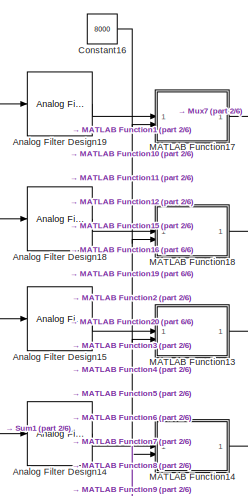
[diagram: root canvas - part 1/6, top left region]
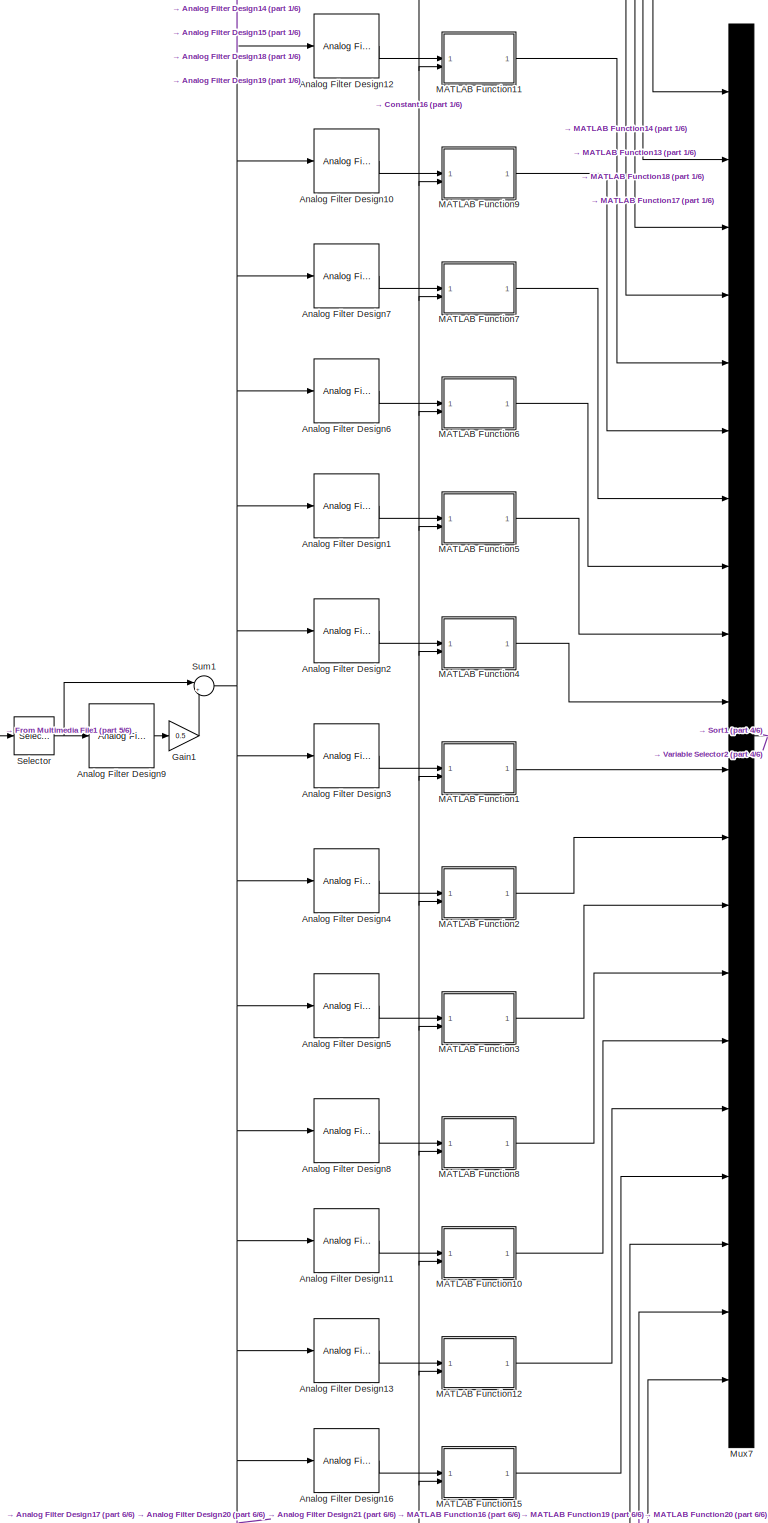
[diagram: root canvas - part 2/6, middle left region]
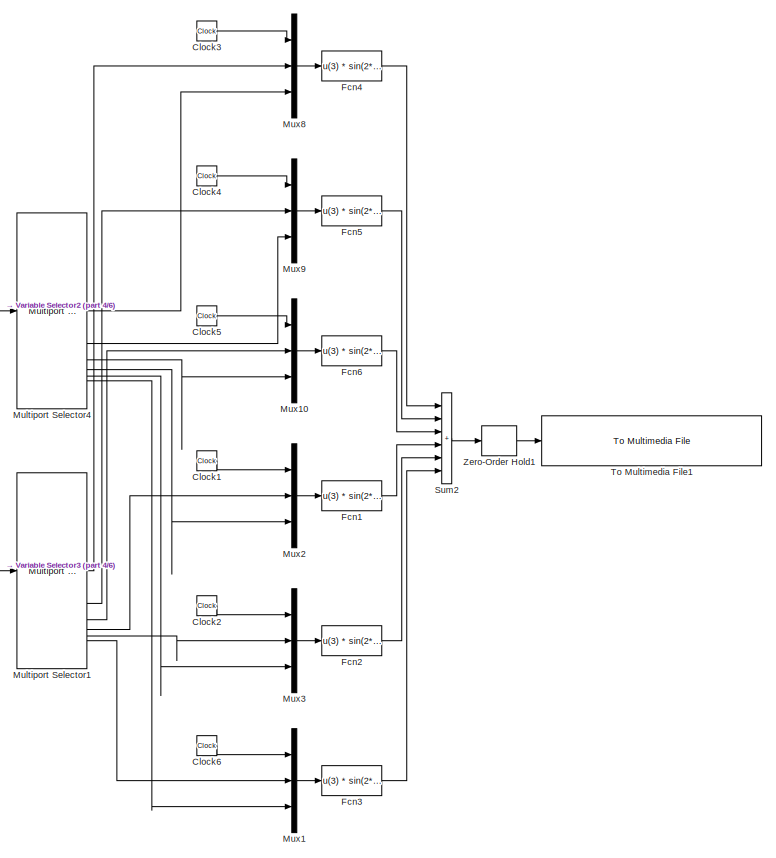
[diagram: root canvas - part 3/6, middle right region]
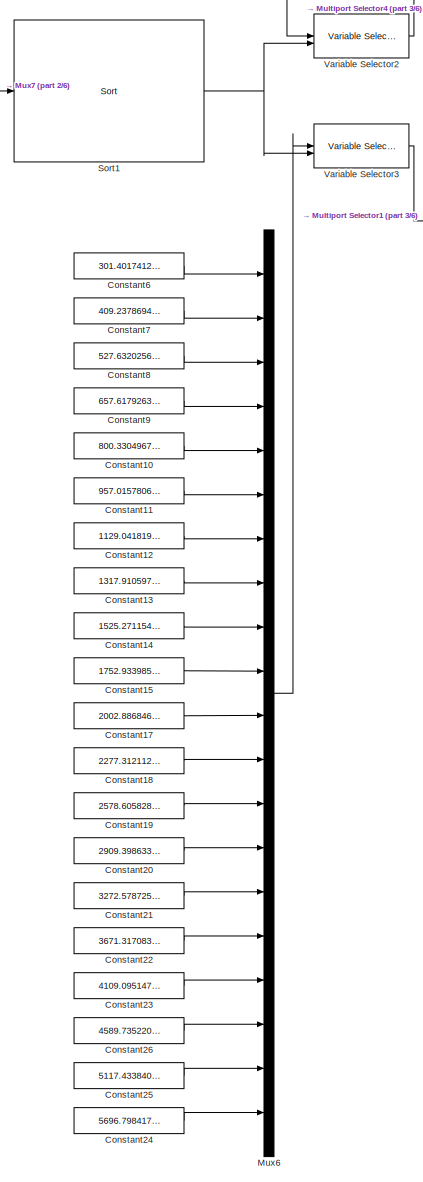
[diagram: root canvas - part 4/6, bottom center region]
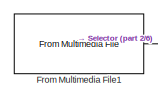
[diagram: root canvas - part 5/6, middle left region]
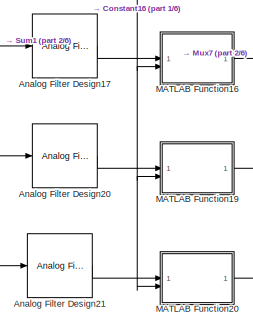
[diagram: root canvas - part 6/6, bottom left region]
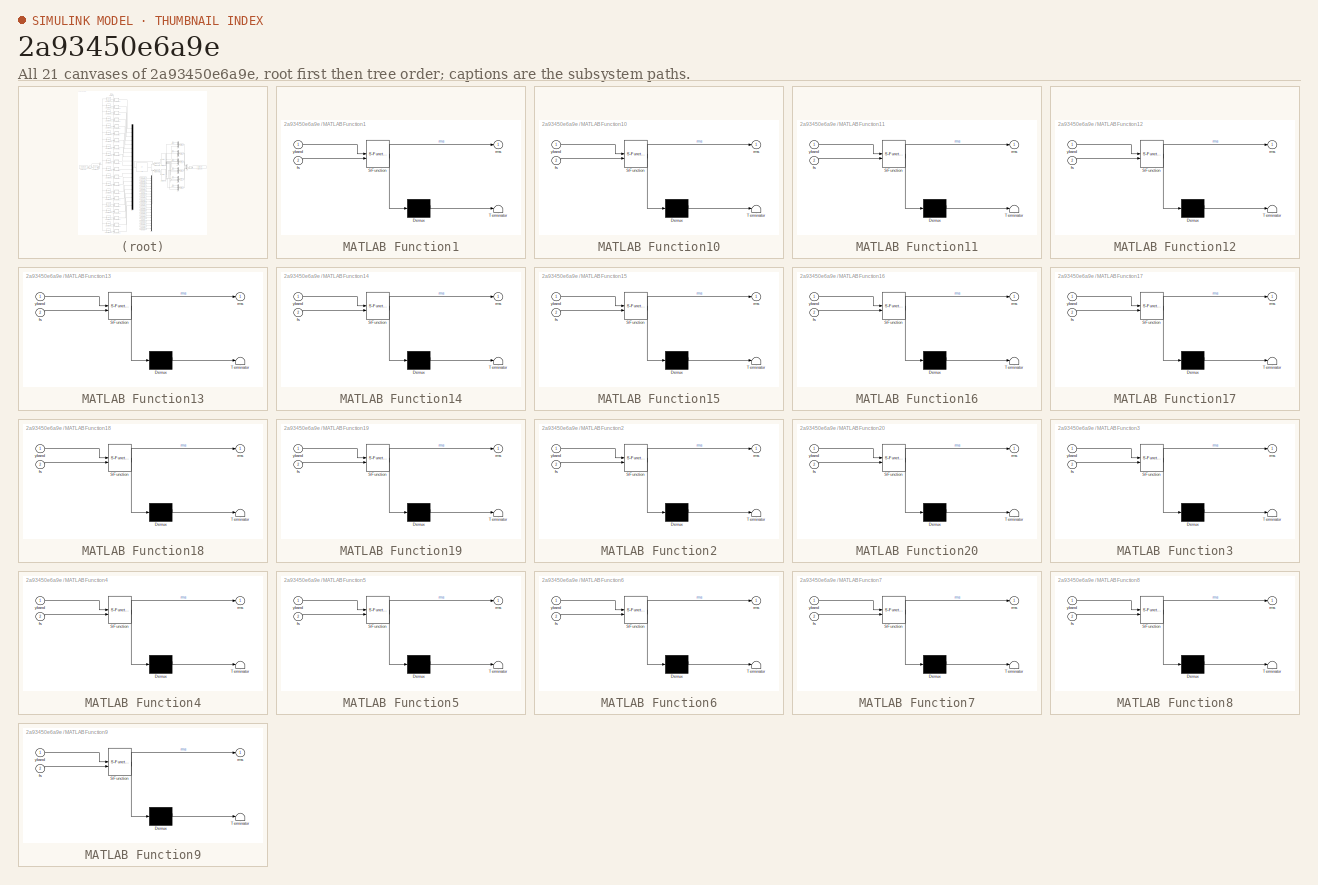
[diagram: thumbnail index - all 21 canvases of the model, root first then tree order]
MODEL slx_2a93450e6a9e
KIND model
CONFIG AbsTol = auto
CONFIG EnableMultiTasking = off
CONFIG FixedStep = auto
CONFIG MaxStep = auto
CONFIG MinStep = auto
CONFIG RelTol = 1e-3
CONFIG SampleTimeConstraint = Unconstrained
CONFIG SolverName = ode23tb
CONFIG StartTime = 0.0
CONFIG StopTime = 3.0
BLOCK [Reference] Analog Filter Design1  REF=dspfdesign/Analog
Filter Design
  SourceBlock = dspfdesign/Analog\nFilter Design
  SourceType = Analog Filter Design
BLOCK [Reference] Analog Filter Design10  REF=dspfdesign/Analog
Filter Design
  SourceBlock = dspfdesign/Analog\nFilter Design
  SourceType = Analog Filter Design
BLOCK [Reference] Analog Filter Design11  REF=dspfdesign/Analog
Filter Design
  SourceBlock = dspfdesign/Analog\nFilter Design
  SourceType = Analog Filter Design
BLOCK [Reference] Analog Filter Design12  REF=dspfdesign/Analog
Filter Design
  SourceBlock = dspfdesign/Analog\nFilter Design
  SourceType = Analog Filter Design
BLOCK [Reference] Analog Filter Design13  REF=dspfdesign/Analog
Filter Design
  SourceBlock = dspfdesign/Analog\nFilter Design
  SourceType = Analog Filter Design
BLOCK [Reference] Analog Filter Design14  REF=dspfdesign/Analog
Filter Design
  SourceBlock = dspfdesign/Analog\nFilter Design
  SourceType = Analog Filter Design
BLOCK [Reference] Analog Filter Design15  REF=dspfdesign/Analog
Filter Design
  SourceBlock = dspfdesign/Analog\nFilter Design
  SourceType = Analog Filter Design
BLOCK [Reference] Analog Filter Design16  REF=dspfdesign/Analog
Filter Design
  SourceBlock = dspfdesign/Analog\nFilter Design
  SourceType = Analog Filter Design
BLOCK [Reference] Analog Filter Design17  REF=dspfdesign/Analog
Filter Design
  SourceBlock = dspfdesign/Analog\nFilter Design
  SourceType = Analog Filter Design
BLOCK [Reference] Analog Filter Design18  REF=dspfdesign/Analog
Filter Design
  SourceBlock = dspfdesign/Analog\nFilter Design
  SourceType = Analog Filter Design
BLOCK [Reference] Analog Filter Design19  REF=dspfdesign/Analog
Filter Design
  SourceBlock = dspfdesign/Analog\nFilter Design
  SourceType = Analog Filter Design
BLOCK [Reference] Analog Filter Design2  REF=dspfdesign/Analog
Filter Design
  SourceBlock = dspfdesign/Analog\nFilter Design
  SourceType = Analog Filter Design
BLOCK [Reference] Analog Filter Design20  REF=dspfdesign/Analog
Filter Design
  SourceBlock = dspfdesign/Analog\nFilter Design
  SourceType = Analog Filter Design
BLOCK [Reference] Analog Filter Design21  REF=dspfdesign/Analog
Filter Design
  SourceBlock = dspfdesign/Analog\nFilter Design
  SourceType = Analog Filter Design
BLOCK [Reference] Analog Filter Design3  REF=dspfdesign/Analog
Filter Design
  SourceBlock = dspfdesign/Analog\nFilter Design
  SourceType = Analog Filter Design
BLOCK [Reference] Analog Filter Design4  REF=dspfdesign/Analog
Filter Design
  SourceBlock = dspfdesign/Analog\nFilter Design
  SourceType = Analog Filter Design
BLOCK [Reference] Analog Filter Design5  REF=dspfdesign/Analog
Filter Design
  SourceBlock = dspfdesign/Analog\nFilter Design
  SourceType = Analog Filter Design
BLOCK [Reference] Analog Filter Design6  REF=dspfdesign/Analog
Filter Design
  SourceBlock = dspfdesign/Analog\nFilter Design
  SourceType = Analog Filter Design
BLOCK [Reference] Analog Filter Design7  REF=dspfdesign/Analog
Filter Design
  SourceBlock = dspfdesign/Analog\nFilter Design
  SourceType = Analog Filter Design
BLOCK [Reference] Analog Filter Design8  REF=dspfdesign/Analog
Filter Design
  SourceBlock = dspfdesign/Analog\nFilter Design
  SourceType = Analog Filter Design
BLOCK [Reference] Analog Filter Design9  REF=dspfdesign/Analog
Filter Design
  SourceBlock = dspfdesign/Analog\nFilter Design
  SourceType = Analog Filter Design
BLOCK [Clock] Clock1
BLOCK [Clock] Clock2
BLOCK [Clock] Clock3
BLOCK [Clock] Clock4
BLOCK [Clock] Clock5
BLOCK [Clock] Clock6
BLOCK [Constant] Constant10
  Value = 800.330496731221
BLOCK [Constant] Constant11
  Value = 957.015780685397
BLOCK [Constant] Constant12
  Value = 1129.04181972607
BLOCK [Constant] Constant13
  Value = 1317.91059770701
BLOCK [Constant] Constant14
  Value = 1525.27115483511
BLOCK [Constant] Constant15
  Value = 1752.93398567535
BLOCK [Constant] Constant16
  Value = 8000
BLOCK [Constant] Constant17
  Value = 2002.88684683675
BLOCK [Constant] Constant18
  Value = 2277.31211235852
BLOCK [Constant] Constant19
  Value = 2578.60582832868
BLOCK [Constant] Constant20
  Value = 2909.39863310382
BLOCK [Constant] Constant21
  Value = 3272.57872578734
BLOCK [Constant] Constant22
  Value = 3671.31708350727
BLOCK [Constant] Constant23
  Value = 4109.09514766932
BLOCK [Constant] Constant24
  Value = 5696.79841735036
BLOCK [Constant] Constant25
  Value = 5117.43384020440
BLOCK [Constant] Constant26
  Value = 4589.73522091778
BLOCK [Constant] Constant6
  Value = 301.401741230304
BLOCK [Constant] Constant7
  Value = 409.237869408070
BLOCK [Constant] Constant8
  Value = 527.632025692257
BLOCK [Constant] Constant9
  Value = 657.617926327872
BLOCK [Fcn] Fcn1
  Expr = u(3) * sin(2*pi*u(1)*u(2))
BLOCK [Fcn] Fcn2
  Expr = u(3) * sin(2*pi*u(1)*u(2))
BLOCK [Fcn] Fcn3
  Expr = u(3) * sin(2*pi*u(1)*u(2))
BLOCK [Fcn] Fcn4
  Expr = u(3) * sin(2*pi*u(1)*u(2))
BLOCK [Fcn] Fcn5
  Expr = u(3) * sin(2*pi*u(1)*u(2))
BLOCK [Fcn] Fcn6
  Expr = u(3) * sin(2*pi*u(1)*u(2))
BLOCK [Reference] From Multimedia File1  REF=dspvision/From Multimedia File
  LibrarySourceBlock = dspsrcs4/From Multimedia File
  SourceBlock = dspvision/From Multimedia File
  SourceType = From Multimedia File
BLOCK [Gain] Gain1
  Gain = 0.5
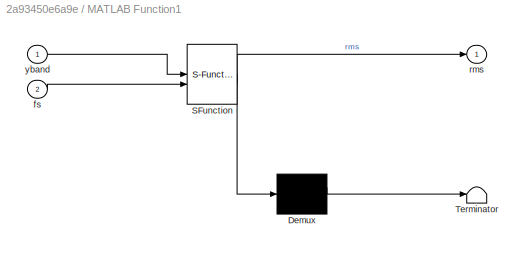
BLOCK [SubSystem] MATLAB Function1
  ErrorFcn = Stateflow.Translate.translate
  PermitHierarchicalResolution = ExplicitOnly
  SFBlockType = MATLAB Function
  TreatAsAtomicUnit = on
BLOCK [Demux] MATLAB Function1/ Demux 
  Outputs = 1
BLOCK [S-Function] MATLAB Function1/ SFunction 
  EnableBusSupport = on
  FunctionName = sf_sfun
  PortCounts = [2 2]
  SFcnIsStateOwnerBlock = off
  SFunctionDeploymentMode = off
  Tag = Stateflow S-Function 1
BLOCK [Terminator] MATLAB Function1/ Terminator 
BLOCK [Inport] MATLAB Function1/fs
  Port = 2
BLOCK [Outport] MATLAB Function1/rms
BLOCK [Inport] MATLAB Function1/yband
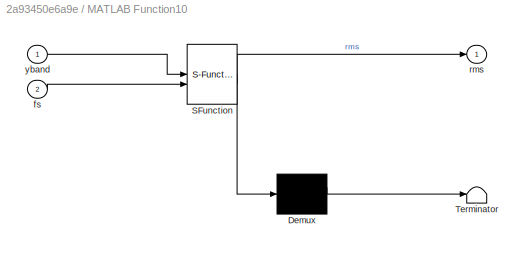
BLOCK [SubSystem] MATLAB Function10
  ErrorFcn = Stateflow.Translate.translate
  PermitHierarchicalResolution = ExplicitOnly
  SFBlockType = MATLAB Function
  TreatAsAtomicUnit = on
BLOCK [Demux] MATLAB Function10/ Demux 
  Outputs = 1
BLOCK [S-Function] MATLAB Function10/ SFunction 
  EnableBusSupport = on
  FunctionName = sf_sfun
  PortCounts = [2 2]
  SFcnIsStateOwnerBlock = off
  SFunctionDeploymentMode = off
  Tag = Stateflow S-Function 10
BLOCK [Terminator] MATLAB Function10/ Terminator 
BLOCK [Inport] MATLAB Function10/fs
  Port = 2
BLOCK [Outport] MATLAB Function10/rms
BLOCK [Inport] MATLAB Function10/yband
BLOCK [SubSystem] MATLAB Function11
  ErrorFcn = Stateflow.Translate.translate
  PermitHierarchicalResolution = ExplicitOnly
  SFBlockType = MATLAB Function
  TreatAsAtomicUnit = on
BLOCK [Demux] MATLAB Function11/ Demux 
  Outputs = 1
BLOCK [S-Function] MATLAB Function11/ SFunction 
  EnableBusSupport = on
  FunctionName = sf_sfun
  PortCounts = [2 2]
  SFcnIsStateOwnerBlock = off
  SFunctionDeploymentMode = off
  Tag = Stateflow S-Function 11
BLOCK [Terminator] MATLAB Function11/ Terminator 
BLOCK [Inport] MATLAB Function11/fs
  Port = 2
BLOCK [Outport] MATLAB Function11/rms
BLOCK [Inport] MATLAB Function11/yband
BLOCK [SubSystem] MATLAB Function12
  ErrorFcn = Stateflow.Translate.translate
  PermitHierarchicalResolution = ExplicitOnly
  SFBlockType = MATLAB Function
  TreatAsAtomicUnit = on
BLOCK [Demux] MATLAB Function12/ Demux 
  Outputs = 1
BLOCK [S-Function] MATLAB Function12/ SFunction 
  EnableBusSupport = on
  FunctionName = sf_sfun
  PortCounts = [2 2]
  SFcnIsStateOwnerBlock = off
  SFunctionDeploymentMode = off
  Tag = Stateflow S-Function 12
BLOCK [Terminator] MATLAB Function12/ Terminator 
BLOCK [Inport] MATLAB Function12/fs
  Port = 2
BLOCK [Outport] MATLAB Function12/rms
BLOCK [Inport] MATLAB Function12/yband
BLOCK [SubSystem] MATLAB Function13
  ErrorFcn = Stateflow.Translate.translate
  PermitHierarchicalResolution = ExplicitOnly
  SFBlockType = MATLAB Function
  TreatAsAtomicUnit = on
BLOCK [Demux] MATLAB Function13/ Demux 
  Outputs = 1
BLOCK [S-Function] MATLAB Function13/ SFunction 
  EnableBusSupport = on
  FunctionName = sf_sfun
  PortCounts = [2 2]
  SFcnIsStateOwnerBlock = off
  SFunctionDeploymentMode = off
  Tag = Stateflow S-Function 13
BLOCK [Terminator] MATLAB Function13/ Terminator 
BLOCK [Inport] MATLAB Function13/fs
  Port = 2
BLOCK [Outport] MATLAB Function13/rms
BLOCK [Inport] MATLAB Function13/yband
BLOCK [SubSystem] MATLAB Function14
  ErrorFcn = Stateflow.Translate.translate
  PermitHierarchicalResolution = ExplicitOnly
  SFBlockType = MATLAB Function
  TreatAsAtomicUnit = on
BLOCK [Demux] MATLAB Function14/ Demux 
  Outputs = 1
BLOCK [S-Function] MATLAB Function14/ SFunction 
  EnableBusSupport = on
  FunctionName = sf_sfun
  PortCounts = [2 2]
  SFcnIsStateOwnerBlock = off
  SFunctionDeploymentMode = off
  Tag = Stateflow S-Function 14
BLOCK [Terminator] MATLAB Function14/ Terminator 
BLOCK [Inport] MATLAB Function14/fs
  Port = 2
BLOCK [Outport] MATLAB Function14/rms
BLOCK [Inport] MATLAB Function14/yband
BLOCK [SubSystem] MATLAB Function15
  ErrorFcn = Stateflow.Translate.translate
  PermitHierarchicalResolution = ExplicitOnly
  SFBlockType = MATLAB Function
  TreatAsAtomicUnit = on
BLOCK [Demux] MATLAB Function15/ Demux 
  Outputs = 1
BLOCK [S-Function] MATLAB Function15/ SFunction 
  EnableBusSupport = on
  FunctionName = sf_sfun
  PortCounts = [2 2]
  SFcnIsStateOwnerBlock = off
  SFunctionDeploymentMode = off
  Tag = Stateflow S-Function 15
BLOCK [Terminator] MATLAB Function15/ Terminator 
BLOCK [Inport] MATLAB Function15/fs
  Port = 2
BLOCK [Outport] MATLAB Function15/rms
BLOCK [Inport] MATLAB Function15/yband
BLOCK [SubSystem] MATLAB Function16
  ErrorFcn = Stateflow.Translate.translate
  PermitHierarchicalResolution = ExplicitOnly
  SFBlockType = MATLAB Function
  TreatAsAtomicUnit = on
BLOCK [Demux] MATLAB Function16/ Demux 
  Outputs = 1
BLOCK [S-Function] MATLAB Function16/ SFunction 
  EnableBusSupport = on
  FunctionName = sf_sfun
  PortCounts = [2 2]
  SFcnIsStateOwnerBlock = off
  SFunctionDeploymentMode = off
  Tag = Stateflow S-Function 16
BLOCK [Terminator] MATLAB Function16/ Terminator 
BLOCK [Inport] MATLAB Function16/fs
  Port = 2
BLOCK [Outport] MATLAB Function16/rms
BLOCK [Inport] MATLAB Function16/yband
BLOCK [SubSystem] MATLAB Function17
  ErrorFcn = Stateflow.Translate.translate
  PermitHierarchicalResolution = ExplicitOnly
  SFBlockType = MATLAB Function
  TreatAsAtomicUnit = on
BLOCK [Demux] MATLAB Function17/ Demux 
  Outputs = 1
BLOCK [S-Function] MATLAB Function17/ SFunction 
  EnableBusSupport = on
  FunctionName = sf_sfun
  PortCounts = [2 2]
  SFcnIsStateOwnerBlock = off
  SFunctionDeploymentMode = off
  Tag = Stateflow S-Function 17
BLOCK [Terminator] MATLAB Function17/ Terminator 
BLOCK [Inport] MATLAB Function17/fs
  Port = 2
BLOCK [Outport] MATLAB Function17/rms
BLOCK [Inport] MATLAB Function17/yband
BLOCK [SubSystem] MATLAB Function18
  ErrorFcn = Stateflow.Translate.translate
  PermitHierarchicalResolution = ExplicitOnly
  SFBlockType = MATLAB Function
  TreatAsAtomicUnit = on
BLOCK [Demux] MATLAB Function18/ Demux 
  Outputs = 1
BLOCK [S-Function] MATLAB Function18/ SFunction 
  EnableBusSupport = on
  FunctionName = sf_sfun
  PortCounts = [2 2]
  SFcnIsStateOwnerBlock = off
  SFunctionDeploymentMode = off
  Tag = Stateflow S-Function 18
BLOCK [Terminator] MATLAB Function18/ Terminator 
BLOCK [Inport] MATLAB Function18/fs
  Port = 2
BLOCK [Outport] MATLAB Function18/rms
BLOCK [Inport] MATLAB Function18/yband
BLOCK [SubSystem] MATLAB Function19
  ErrorFcn = Stateflow.Translate.translate
  PermitHierarchicalResolution = ExplicitOnly
  SFBlockType = MATLAB Function
  TreatAsAtomicUnit = on
BLOCK [Demux] MATLAB Function19/ Demux 
  Outputs = 1
BLOCK [S-Function] MATLAB Function19/ SFunction 
  EnableBusSupport = on
  FunctionName = sf_sfun
  PortCounts = [2 2]
  SFcnIsStateOwnerBlock = off
  SFunctionDeploymentMode = off
  Tag = Stateflow S-Function 19
BLOCK [Terminator] MATLAB Function19/ Terminator 
BLOCK [Inport] MATLAB Function19/fs
  Port = 2
BLOCK [Outport] MATLAB Function19/rms
BLOCK [Inport] MATLAB Function19/yband
BLOCK [SubSystem] MATLAB Function2
  ErrorFcn = Stateflow.Translate.translate
  PermitHierarchicalResolution = ExplicitOnly
  SFBlockType = MATLAB Function
  TreatAsAtomicUnit = on
BLOCK [Demux] MATLAB Function2/ Demux 
  Outputs = 1
BLOCK [S-Function] MATLAB Function2/ SFunction 
  EnableBusSupport = on
  FunctionName = sf_sfun
  PortCounts = [2 2]
  SFcnIsStateOwnerBlock = off
  SFunctionDeploymentMode = off
  Tag = Stateflow S-Function 2
BLOCK [Terminator] MATLAB Function2/ Terminator 
BLOCK [Inport] MATLAB Function2/fs
  Port = 2
BLOCK [Outport] MATLAB Function2/rms
BLOCK [Inport] MATLAB Function2/yband
BLOCK [SubSystem] MATLAB Function20
  ErrorFcn = Stateflow.Translate.translate
  PermitHierarchicalResolution = ExplicitOnly
  SFBlockType = MATLAB Function
  TreatAsAtomicUnit = on
BLOCK [Demux] MATLAB Function20/ Demux 
  Outputs = 1
BLOCK [S-Function] MATLAB Function20/ SFunction 
  EnableBusSupport = on
  FunctionName = sf_sfun
  PortCounts = [2 2]
  SFcnIsStateOwnerBlock = off
  SFunctionDeploymentMode = off
  Tag = Stateflow S-Function 20
BLOCK [Terminator] MATLAB Function20/ Terminator 
BLOCK [Inport] MATLAB Function20/fs
  Port = 2
BLOCK [Outport] MATLAB Function20/rms
BLOCK [Inport] MATLAB Function20/yband
BLOCK [SubSystem] MATLAB Function3
  ErrorFcn = Stateflow.Translate.translate
  PermitHierarchicalResolution = ExplicitOnly
  SFBlockType = MATLAB Function
  TreatAsAtomicUnit = on
BLOCK [Demux] MATLAB Function3/ Demux 
  Outputs = 1
BLOCK [S-Function] MATLAB Function3/ SFunction 
  EnableBusSupport = on
  FunctionName = sf_sfun
  PortCounts = [2 2]
  SFcnIsStateOwnerBlock = off
  SFunctionDeploymentMode = off
  Tag = Stateflow S-Function 3
BLOCK [Terminator] MATLAB Function3/ Terminator 
BLOCK [Inport] MATLAB Function3/fs
  Port = 2
BLOCK [Outport] MATLAB Function3/rms
BLOCK [Inport] MATLAB Function3/yband
BLOCK [SubSystem] MATLAB Function4
  ErrorFcn = Stateflow.Translate.translate
  PermitHierarchicalResolution = ExplicitOnly
  SFBlockType = MATLAB Function
  TreatAsAtomicUnit = on
BLOCK [Demux] MATLAB Function4/ Demux 
  Outputs = 1
BLOCK [S-Function] MATLAB Function4/ SFunction 
  EnableBusSupport = on
  FunctionName = sf_sfun
  PortCounts = [2 2]
  SFcnIsStateOwnerBlock = off
  SFunctionDeploymentMode = off
  Tag = Stateflow S-Function 5
BLOCK [Terminator] MATLAB Function4/ Terminator 
BLOCK [Inport] MATLAB Function4/fs
  Port = 2
BLOCK [Outport] MATLAB Function4/rms
BLOCK [Inport] MATLAB Function4/yband
BLOCK [SubSystem] MATLAB Function5
  ErrorFcn = Stateflow.Translate.translate
  PermitHierarchicalResolution = ExplicitOnly
  SFBlockType = MATLAB Function
  TreatAsAtomicUnit = on
BLOCK [Demux] MATLAB Function5/ Demux 
  Outputs = 1
BLOCK [S-Function] MATLAB Function5/ SFunction 
  EnableBusSupport = on
  FunctionName = sf_sfun
  PortCounts = [2 2]
  SFcnIsStateOwnerBlock = off
  SFunctionDeploymentMode = off
  Tag = Stateflow S-Function 6
BLOCK [Terminator] MATLAB Function5/ Terminator 
BLOCK [Inport] MATLAB Function5/fs
  Port = 2
BLOCK [Outport] MATLAB Function5/rms
BLOCK [Inport] MATLAB Function5/yband
BLOCK [SubSystem] MATLAB Function6
  ErrorFcn = Stateflow.Translate.translate
  PermitHierarchicalResolution = ExplicitOnly
  SFBlockType = MATLAB Function
  TreatAsAtomicUnit = on
BLOCK [Demux] MATLAB Function6/ Demux 
  Outputs = 1
BLOCK [S-Function] MATLAB Function6/ SFunction 
  EnableBusSupport = on
  FunctionName = sf_sfun
  PortCounts = [2 2]
  SFcnIsStateOwnerBlock = off
  SFunctionDeploymentMode = off
  Tag = Stateflow S-Function 4
BLOCK [Terminator] MATLAB Function6/ Terminator 
BLOCK [Inport] MATLAB Function6/fs
  Port = 2
BLOCK [Outport] MATLAB Function6/rms
BLOCK [Inport] MATLAB Function6/yband
BLOCK [SubSystem] MATLAB Function7
  ErrorFcn = Stateflow.Translate.translate
  PermitHierarchicalResolution = ExplicitOnly
  SFBlockType = MATLAB Function
  TreatAsAtomicUnit = on
BLOCK [Demux] MATLAB Function7/ Demux 
  Outputs = 1
BLOCK [S-Function] MATLAB Function7/ SFunction 
  EnableBusSupport = on
  FunctionName = sf_sfun
  PortCounts = [2 2]
  SFcnIsStateOwnerBlock = off
  SFunctionDeploymentMode = off
  Tag = Stateflow S-Function 7
BLOCK [Terminator] MATLAB Function7/ Terminator 
BLOCK [Inport] MATLAB Function7/fs
  Port = 2
BLOCK [Outport] MATLAB Function7/rms
BLOCK [Inport] MATLAB Function7/yband
BLOCK [SubSystem] MATLAB Function8
  ErrorFcn = Stateflow.Translate.translate
  PermitHierarchicalResolution = ExplicitOnly
  SFBlockType = MATLAB Function
  TreatAsAtomicUnit = on
BLOCK [Demux] MATLAB Function8/ Demux 
  Outputs = 1
BLOCK [S-Function] MATLAB Function8/ SFunction 
  EnableBusSupport = on
  FunctionName = sf_sfun
  PortCounts = [2 2]
  SFcnIsStateOwnerBlock = off
  SFunctionDeploymentMode = off
  Tag = Stateflow S-Function 8
BLOCK [Terminator] MATLAB Function8/ Terminator 
BLOCK [Inport] MATLAB Function8/fs
  Port = 2
BLOCK [Outport] MATLAB Function8/rms
BLOCK [Inport] MATLAB Function8/yband
BLOCK [SubSystem] MATLAB Function9
  ErrorFcn = Stateflow.Translate.translate
  PermitHierarchicalResolution = ExplicitOnly
  SFBlockType = MATLAB Function
  TreatAsAtomicUnit = on
BLOCK [Demux] MATLAB Function9/ Demux 
  Outputs = 1
BLOCK [S-Function] MATLAB Function9/ SFunction 
  EnableBusSupport = on
  FunctionName = sf_sfun
  PortCounts = [2 2]
  SFcnIsStateOwnerBlock = off
  SFunctionDeploymentMode = off
  Tag = Stateflow S-Function 9
BLOCK [Terminator] MATLAB Function9/ Terminator 
BLOCK [Inport] MATLAB Function9/fs
  Port = 2
BLOCK [Outport] MATLAB Function9/rms
BLOCK [Inport] MATLAB Function9/yband
BLOCK [Reference] Multiport Selector1  REF=dspindex/Multiport
Selector
  SourceBlock = dspindex/Multiport\nSelector
  SourceType = Multiport Selector
BLOCK [Reference] Multiport Selector4  REF=dspindex/Multiport
Selector
  SourceBlock = dspindex/Multiport\nSelector
  SourceType = Multiport Selector
BLOCK [Mux] Mux1
  DisplayOption = bar
  Inputs = 3
BLOCK [Mux] Mux10
  DisplayOption = bar
  Inputs = 3
BLOCK [Mux] Mux2
  DisplayOption = bar
  Inputs = 3
BLOCK [Mux] Mux3
  DisplayOption = bar
  Inputs = 3
BLOCK [Mux] Mux6
  DisplayOption = bar
  Inputs = 20
  NameLocation = left
BLOCK [Mux] Mux7
  DisplayOption = bar
  Inputs = 20
  NameLocation = left
BLOCK [Mux] Mux8
  DisplayOption = bar
  Inputs = 3
BLOCK [Mux] Mux9
  DisplayOption = bar
  Inputs = 3
BLOCK [Selector] Selector
  IndexOptions = Select all,Index vector (dialog)
  Indices = [2],1
  InputPortWidth = 3
  NumberOfDimensions = 2
  OutputSizes = 1,1
BLOCK [Reference] Sort1  REF=dspstat3/Sort
  SourceBlock = dspstat3/Sort
  SourceType = Sort
BLOCK [Sum] Sum1
  Inputs = |++
BLOCK [Sum] Sum2
  IconShape = rectangular
  Inputs = ++++++
BLOCK [Reference] To Multimedia File1  REF=dspvision/To Multimedia File
  LibrarySourceBlock = dspsnks4/To Multimedia File
  SourceBlock = dspvision/To Multimedia File
  SourceType = To Multimedia File
BLOCK [Reference] Variable Selector2  REF=dspindex/Variable
Selector
  LibrarySourceBlock = dsphdlsupportsigmgmt/Variable\nSelector
  SourceBlock = dspindex/Variable\nSelector
  SourceType = Variable Selector
BLOCK [Reference] Variable Selector3  REF=dspindex/Variable
Selector
  LibrarySourceBlock = dsphdlsupportsigmgmt/Variable\nSelector
  SourceBlock = dspindex/Variable\nSelector
  SourceType = Variable Selector
BLOCK [ZeroOrderHold] Zero-Order Hold1
  SampleTime = 1/8000
LINE Analog Filter Design10:1 -> MATLAB Function9:1
LINE Analog Filter Design11:1 -> MATLAB Function10:1
LINE Analog Filter Design12:1 -> MATLAB Function11:1
LINE Analog Filter Design13:1 -> MATLAB Function12:1
LINE Analog Filter Design14:1 -> MATLAB Function14:1
LINE Analog Filter Design15:1 -> MATLAB Function13:1
LINE Analog Filter Design16:1 -> MATLAB Function15:1
LINE Analog Filter Design17:1 -> MATLAB Function16:1
LINE Analog Filter Design18:1 -> MATLAB Function18:1
LINE Analog Filter Design19:1 -> MATLAB Function17:1
LINE Analog Filter Design1:1 -> MATLAB Function5:1
LINE Analog Filter Design20:1 -> MATLAB Function19:1
LINE Analog Filter Design21:1 -> MATLAB Function20:1
LINE Analog Filter Design2:1 -> MATLAB Function4:1
LINE Analog Filter Design3:1 -> MATLAB Function1:1
LINE Analog Filter Design4:1 -> MATLAB Function2:1
LINE Analog Filter Design5:1 -> MATLAB Function3:1
LINE Analog Filter Design6:1 -> MATLAB Function6:1
LINE Analog Filter Design7:1 -> MATLAB Function7:1
LINE Analog Filter Design8:1 -> MATLAB Function8:1
LINE Analog Filter Design9:1 -> Gain1:1
LINE Clock1:1 -> Mux2:1
LINE Clock2:1 -> Mux3:1
LINE Clock3:1 -> Mux8:1
LINE Clock4:1 -> Mux9:1
LINE Clock5:1 -> Mux10:1
LINE Clock6:1 -> Mux1:1
LINE Constant10:1 -> Mux6:5
LINE Constant11:1 -> Mux6:6
LINE Constant12:1 -> Mux6:7
LINE Constant13:1 -> Mux6:8
LINE Constant14:1 -> Mux6:9
LINE Constant15:1 -> Mux6:10
NET Constant16:1 -> MATLAB Function10:2, MATLAB Function11:2, MATLAB Function12:2, MATLAB Function13:2, MATLAB Function14:2, MATLAB Function15:2, MATLAB Function16:2, MATLAB Function17:2, MATLAB Function18:2, MATLAB Function19:2, MATLAB Function1:2, MATLAB Function20:2, MATLAB Function2:2, MATLAB Function3:2, MATLAB Function4:2, MATLAB Function5:2, MATLAB Function6:2, MATLAB Function7:2, MATLAB Function8:2, MATLAB Function9:2
LINE Constant17:1 -> Mux6:11
LINE Constant18:1 -> Mux6:12
LINE Constant19:1 -> Mux6:13
LINE Constant20:1 -> Mux6:14
LINE Constant21:1 -> Mux6:15
LINE Constant22:1 -> Mux6:16
LINE Constant23:1 -> Mux6:17
LINE Constant24:1 -> Mux6:20
LINE Constant25:1 -> Mux6:19
LINE Constant26:1 -> Mux6:18
LINE Constant6:1 -> Mux6:1
LINE Constant7:1 -> Mux6:2
LINE Constant8:1 -> Mux6:3
LINE Constant9:1 -> Mux6:4
LINE Fcn1:1 -> Sum2:4
LINE Fcn2:1 -> Sum2:5
LINE Fcn3:1 -> Sum2:6
LINE Fcn4:1 -> Sum2:1
LINE Fcn5:1 -> Sum2:2
LINE Fcn6:1 -> Sum2:3
LINE From Multimedia File1:1 -> Selector:1
LINE Gain1:1 -> Sum1:2
LINE MATLAB Function10:1 -> Mux7:15
LINE MATLAB Function11:1 -> Mux7:5
LINE MATLAB Function12:1 -> Mux7:16
LINE MATLAB Function13:1 -> Mux7:3
LINE MATLAB Function14:1 -> Mux7:4
LINE MATLAB Function15:1 -> Mux7:17
LINE MATLAB Function16:1 -> Mux7:18
LINE MATLAB Function17:1 -> Mux7:1
LINE MATLAB Function18:1 -> Mux7:2
LINE MATLAB Function19:1 -> Mux7:19
LINE MATLAB Function1:1 -> Mux7:11
LINE MATLAB Function20:1 -> Mux7:20
LINE MATLAB Function2:1 -> Mux7:12
LINE MATLAB Function3:1 -> Mux7:13
LINE MATLAB Function4:1 -> Mux7:10
LINE MATLAB Function5:1 -> Mux7:9
LINE MATLAB Function6:1 -> Mux7:8
LINE MATLAB Function7:1 -> Mux7:7
LINE MATLAB Function8:1 -> Mux7:14
LINE MATLAB Function9:1 -> Mux7:6
LINE Multiport Selector1:1 -> Mux8:2
LINE Multiport Selector1:2 -> Mux9:2
LINE Multiport Selector1:3 -> Mux10:2
LINE Multiport Selector1:4 -> Mux2:2
LINE Multiport Selector1:5 -> Mux3:2
LINE Multiport Selector1:6 -> Mux1:2
LINE Multiport Selector4:1 -> Mux8:3
LINE Multiport Selector4:2 -> Mux9:3
LINE Multiport Selector4:3 -> Mux10:3
LINE Multiport Selector4:4 -> Mux2:3
LINE Multiport Selector4:5 -> Mux3:3
LINE Multiport Selector4:6 -> Mux1:3
LINE Mux10:1 -> Fcn6:1
LINE Mux1:1 -> Fcn3:1
LINE Mux2:1 -> Fcn1:1
LINE Mux3:1 -> Fcn2:1
LINE Mux6:1 -> Variable Selector3:1
NET Mux7:1 -> Sort1:1, Variable Selector2:1
LINE Mux8:1 -> Fcn4:1
LINE Mux9:1 -> Fcn5:1
NET Selector:1 -> Analog Filter Design9:1, Sum1:1
NET Sort1:1 -> Variable Selector2:2, Variable Selector3:2
NET Sum1:1 -> Analog Filter Design10:1, Analog Filter Design11:1, Analog Filter Design12:1, Analog Filter Design13:1, Analog Filter Design14:1, Analog Filter Design15:1, Analog Filter Design16:1, Analog Filter Design17:1, Analog Filter Design18:1, Analog Filter Design19:1, Analog Filter Design1:1, Analog Filter Design20:1, Analog Filter Design21:1, Analog Filter Design2:1, Analog Filter Design3:1, Analog Filter Design4:1, Analog Filter Design5:1, Analog Filter Design6:1, Analog Filter Design7:1, Analog Filter Design8:1
LINE Sum2:1 -> Zero-Order Hold1:1
LINE Variable Selector2:1 -> Multiport Selector4:1
LINE Variable Selector3:1 -> Multiport Selector1:1
LINE Zero-Order Hold1:1 -> To Multimedia File1:1
note: NET lines group one-source signal fan-out (src -> all destinations, sorted); 1:1 wires keep LINE
CHART MATLAB Function13 states=1 transitions=1
  STATE_LABEL 'eML_blk_kernel()'
  STATE_LABEL "SCRIPT:\nfunction rms = getrms(yband,fs)\n\n    y = abs(yband); %rectifying it makes it sound bad\n\n    [b,a] = butter(2,400/(fs/2));\n\n    z = filter(b,a,y); %this filter also makes it sound bad\n\n    windowsize = round(4/(1000/fs)); %rms computed every 4ms = windowsize samples\n\n    [yupper,ylower] = envelope(yband,windowsize,'rms'); %changed to yband here\n\n    %envelope(z,windowsize,'rms');\n\n    rms =...<+12ch>"  <repeated x20 — deduplicated; at blocks: MATLAB Function13, MATLAB Function14, MATLAB Function15, MATLAB Function16, MATLAB Function17, MATLAB Function18, MATLAB Function19, MATLAB Function20, MATLAB Function2, MATLAB Function3, MATLAB Function6, MATLAB Function4, MATLAB Function5, MATLAB Function7, MATLAB Function8, MATLAB Function9, +4 more>
CHART MATLAB Function14 states=1 transitions=1
  STATE_LABEL 'eML_blk_kernel()'
CHART MATLAB Function15 states=1 transitions=1
  STATE_LABEL 'eML_blk_kernel()'
CHART MATLAB Function16 states=1 transitions=1
  STATE_LABEL 'eML_blk_kernel()'
CHART MATLAB Function17 states=1 transitions=1
  STATE_LABEL 'eML_blk_kernel()'
CHART MATLAB Function18 states=1 transitions=1
  STATE_LABEL 'eML_blk_kernel()'
CHART MATLAB Function19 states=1 transitions=1
  STATE_LABEL 'eML_blk_kernel()'
CHART MATLAB Function20 states=1 transitions=1
  STATE_LABEL 'eML_blk_kernel()'
CHART MATLAB Function2 states=1 transitions=1
  STATE_LABEL 'eML_blk_kernel()'
CHART MATLAB Function3 states=1 transitions=1
  STATE_LABEL 'eML_blk_kernel()'
CHART MATLAB Function6 states=1 transitions=1
  STATE_LABEL 'eML_blk_kernel()'
CHART MATLAB Function4 states=1 transitions=1
  STATE_LABEL 'eML_blk_kernel()'
CHART MATLAB Function5 states=1 transitions=1
  STATE_LABEL 'eML_blk_kernel()'
CHART MATLAB Function7 states=1 transitions=1
  STATE_LABEL 'eML_blk_kernel()'
CHART MATLAB Function8 states=1 transitions=1
  STATE_LABEL 'eML_blk_kernel()'
CHART MATLAB Function9 states=1 transitions=1
  STATE_LABEL 'eML_blk_kernel()'
CHART MATLAB Function10 states=1 transitions=1
  STATE_LABEL 'eML_blk_kernel()'
CHART MATLAB Function11 states=1 transitions=1
  STATE_LABEL 'eML_blk_kernel()'
CHART MATLAB Function1 states=1 transitions=1
  STATE_LABEL 'eML_blk_kernel()'
CHART MATLAB Function12 states=1 transitions=1
  STATE_LABEL 'eML_blk_kernel()'
CHART  states=0 transitions=0
CHART  states=0 transitions=0
CHART  states=0 transitions=0
CHART  states=0 transitions=0
CHART  states=0 transitions=0
CHART  states=0 transitions=0
CHART  states=0 transitions=0
CHART  states=0 transitions=0
CHART  states=0 transitions=0
CHART  states=0 transitions=0
CHART  states=0 transitions=0
CHART  states=0 transitions=0
CHART  states=0 transitions=0
CHART  states=0 transitions=0
CHART  states=0 transitions=0
CHART  states=0 transitions=0
CHART  states=0 transitions=0
CHART  states=0 transitions=0
CHART  states=0 transitions=0
CHART  states=0 transitions=0
